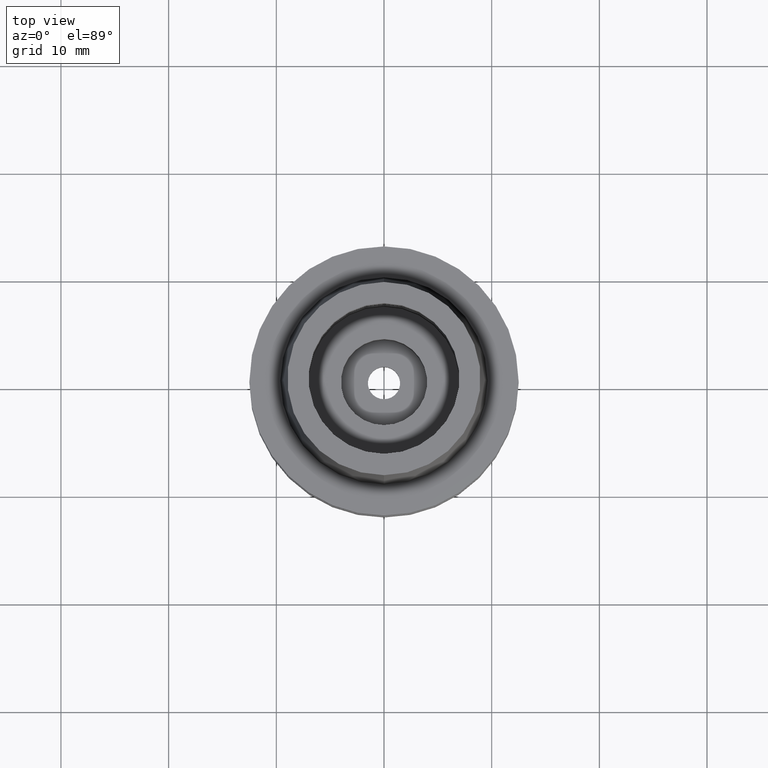
[diagram: clean part render]
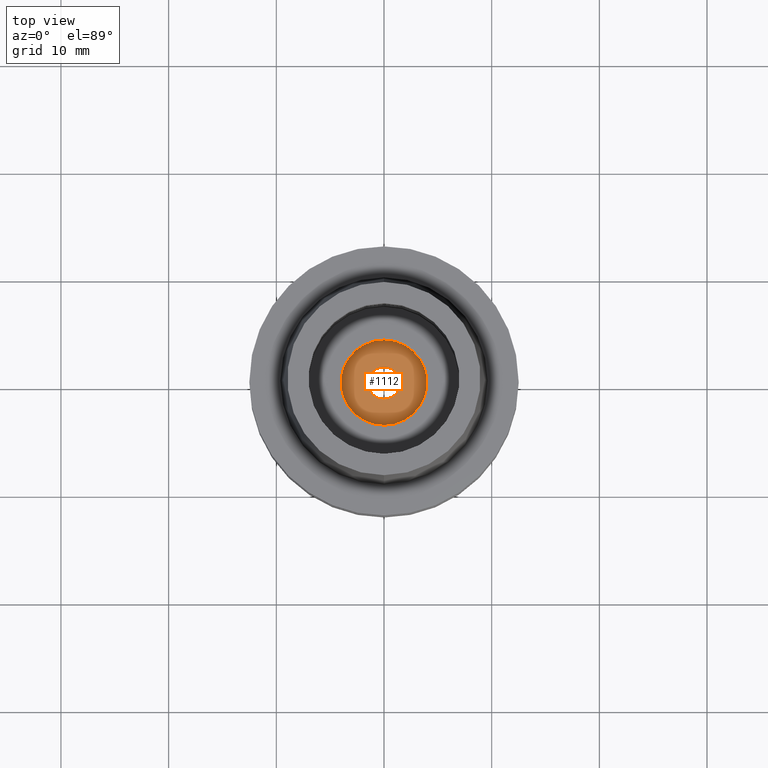
[diagram: same view with one face highlighted and labeled with its STEP entity id]
A machine part, top view. The second image highlights one B-rep face of the part: STEP entity #1112.
In plain terms, the highlighted planar face has unit normal (0, 0, 1).
Its self-contained STEP definition (entity closure, byte-faithful):
#157 = AXIS2_PLACEMENT_3D ( 'NONE', #2438, #421, #2085 ) ;
#229 = EDGE_CURVE ( 'NONE', #1512, #1501, #384, .T. ) ;
#328 = CARTESIAN_POINT ( 'NONE',  ( 0.0000000000000000000, 0.0000000000000000000, -10.94999999999999929 ) ) ;
#384 = CIRCLE ( 'NONE', #2689, 1.500000000000000000 ) ;
#421 = DIRECTION ( 'NONE',  ( 0.0000000000000000000, 0.0000000000000000000, 1.000000000000000000 ) ) ;
#445 = DIRECTION ( 'NONE',  ( 0.0000000000000000000, -1.000000000000000000, 0.0000000000000000000 ) ) ;
#579 = CARTESIAN_POINT ( 'NONE',  ( 0.0000000000000000000, 1.500000000000000000, -10.94999999999999929 ) ) ;
#665 = DIRECTION ( 'NONE',  ( 0.0000000000000000000, 0.0000000000000000000, -1.000000000000000000 ) ) ;
#684 = AXIS2_PLACEMENT_3D ( 'NONE', #1528, #665, #1310 ) ;
#715 = ORIENTED_EDGE ( 'NONE', *, *, #229, .F. ) ;
#784 = PLANE ( 'NONE',  #157 ) ;
#846 = CARTESIAN_POINT ( 'NONE',  ( 0.0000000000000000000, -4.000000000000000000, -10.94999999999999929 ) ) ;
#908 = CIRCLE ( 'NONE', #1247, 1.500000000000000000 ) ;
#930 = DIRECTION ( 'NONE',  ( 0.0000000000000000000, 0.0000000000000000000, 1.000000000000000000 ) ) ;
#1112 = ADVANCED_FACE ( 'NONE', ( #2653, #2272 ), #784, .T. ) ;
#1121 = ORIENTED_EDGE ( 'NONE', *, *, #1443, .F. ) ;
#1205 = CIRCLE ( 'NONE', #2119, 4.000000000000000000 ) ;
#1217 = CARTESIAN_POINT ( 'NONE',  ( 0.0000000000000000000, -1.500000000000000000, -10.94999999999999929 ) ) ;
#1229 = DIRECTION ( 'NONE',  ( 0.0000000000000000000, 0.0000000000000000000, -1.000000000000000000 ) ) ;
#1247 = AXIS2_PLACEMENT_3D ( 'NONE', #1697, #2517, #445 ) ;
#1278 = EDGE_LOOP ( 'NONE', ( #1121, #2291 ) ) ;
#1310 = DIRECTION ( 'NONE',  ( 0.0000000000000000000, 1.000000000000000000, 0.0000000000000000000 ) ) ;
#1443 = EDGE_CURVE ( 'NONE', #1493, #1739, #2461, .T. ) ;
#1493 = VERTEX_POINT ( 'NONE', #2655 ) ;
#1501 = VERTEX_POINT ( 'NONE', #1217 ) ;
#1512 = VERTEX_POINT ( 'NONE', #579 ) ;
#1528 = CARTESIAN_POINT ( 'NONE',  ( 0.0000000000000000000, 0.0000000000000000000, -10.94999999999999929 ) ) ;
#1620 = DIRECTION ( 'NONE',  ( 0.0000000000000000000, -1.000000000000000000, 0.0000000000000000000 ) ) ;
#1624 = EDGE_CURVE ( 'NONE', #1739, #1493, #1205, .T. ) ;
#1697 = CARTESIAN_POINT ( 'NONE',  ( 0.0000000000000000000, 0.0000000000000000000, -10.94999999999999929 ) ) ;
#1739 = VERTEX_POINT ( 'NONE', #846 ) ;
#1866 = EDGE_CURVE ( 'NONE', #1501, #1512, #908, .T. ) ;
#1875 = ORIENTED_EDGE ( 'NONE', *, *, #1866, .F. ) ;
#1925 = EDGE_LOOP ( 'NONE', ( #715, #1875 ) ) ;
#2085 = DIRECTION ( 'NONE',  ( 1.000000000000000000, 0.0000000000000000000, 0.0000000000000000000 ) ) ;
#2119 = AXIS2_PLACEMENT_3D ( 'NONE', #2233, #1229, #1620 ) ;
#2233 = CARTESIAN_POINT ( 'NONE',  ( 0.0000000000000000000, 0.0000000000000000000, -10.94999999999999929 ) ) ;
#2272 = FACE_BOUND ( 'NONE', #1925, .T. ) ;
#2291 = ORIENTED_EDGE ( 'NONE', *, *, #1624, .F. ) ;
#2438 = CARTESIAN_POINT ( 'NONE',  ( 0.0000000000000000000, 0.0000000000000000000, -10.94999999999999929 ) ) ;
#2461 = CIRCLE ( 'NONE', #684, 4.000000000000000000 ) ;
#2517 = DIRECTION ( 'NONE',  ( 0.0000000000000000000, 0.0000000000000000000, 1.000000000000000000 ) ) ;
#2628 = DIRECTION ( 'NONE',  ( 0.0000000000000000000, 1.000000000000000000, 0.0000000000000000000 ) ) ;
#2653 = FACE_OUTER_BOUND ( 'NONE', #1278, .T. ) ;
#2655 = CARTESIAN_POINT ( 'NONE',  ( 0.0000000000000000000, 4.000000000000000000, -10.94999999999999929 ) ) ;
#2689 = AXIS2_PLACEMENT_3D ( 'NONE', #328, #930, #2628 ) ;